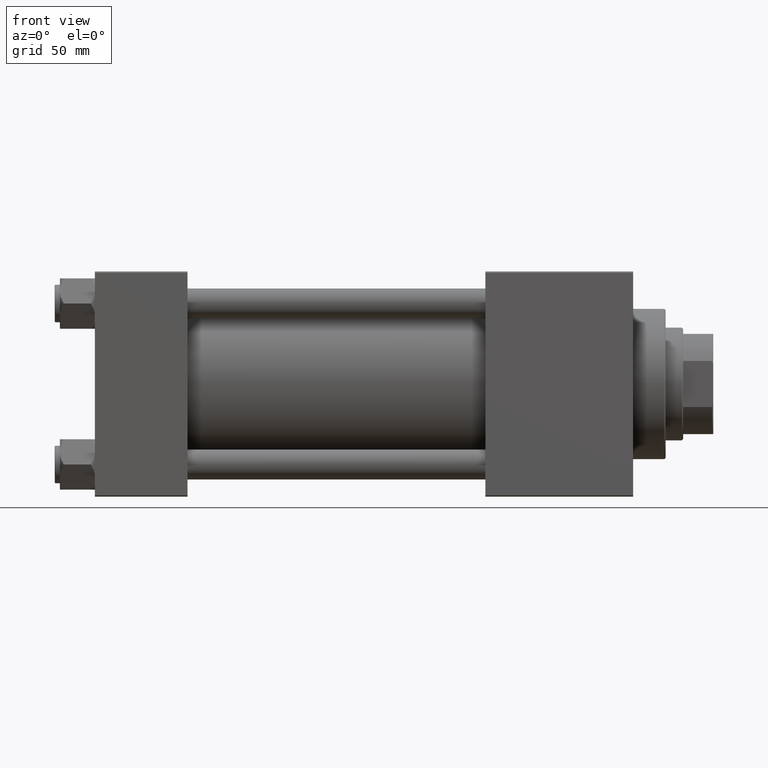
[diagram: clean part render]
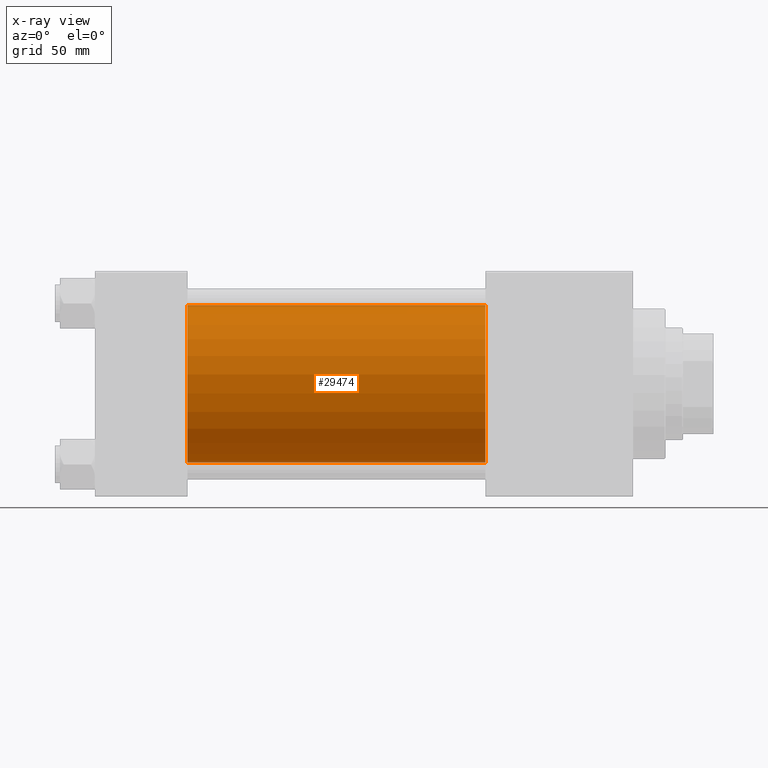
[diagram: x-ray — body ghosted, one internal face saturated and labeled with its STEP entity id]
A machine part, front view, then the same camera in x-ray: the body is ghosted and one INTERNAL B-rep face — a face not visible from any outside direction — is saturated and labeled: STEP entity #29474.
In plain terms, the highlighted cylindrical surface (partial cylindrical patch) has radius 31.5 mm, axis along (-1, -0, -0).
Its self-contained STEP definition (entity closure, byte-faithful):
#1035 = ORIENTED_EDGE ( 'NONE', *, *, #47408, .F. ) ;
#6092 = CIRCLE ( 'NONE', #21452, 31.50000000000000000 ) ;
#6095 = VERTEX_POINT ( 'NONE', #46863 ) ;
#7731 = VECTOR ( 'NONE', #40337, 1000.000000000000000 ) ;
#9120 = VECTOR ( 'NONE', #11511, 1000.000000000000000 ) ;
#9297 = EDGE_CURVE ( 'NONE', #37811, #6095, #6092, .T. ) ;
#9913 = CARTESIAN_POINT ( 'NONE',  ( 156.0000000000000000, 1.255552203348951850E-15, -31.50000000000000000 ) ) ;
#11511 = DIRECTION ( 'NONE',  ( -1.000000000000000000, -0.000000000000000000, -0.000000000000000000 ) ) ;
#13883 = EDGE_CURVE ( 'NONE', #6095, #41286, #47946, .T. ) ;
#15823 = CARTESIAN_POINT ( 'NONE',  ( 156.0000000000000000, -2.602085213965210642E-15, 31.50000000000000000 ) ) ;
#16082 = LINE ( 'NONE', #15823, #9120 ) ;
#17076 = CARTESIAN_POINT ( 'NONE',  ( 37.00000000000000000, 1.255552203348951850E-15, -31.50000000000000000 ) ) ;
#20944 = CARTESIAN_POINT ( 'NONE',  ( 156.0000000000000000, -2.602085213965210642E-15, 31.50000000000000000 ) ) ;
#21452 = AXIS2_PLACEMENT_3D ( 'NONE', #27085, #49175, #42052 ) ;
#24807 = CIRCLE ( 'NONE', #28848, 31.50000000000000000 ) ;
#26332 = FACE_OUTER_BOUND ( 'NONE', #36598, .T. ) ;
#26494 = CARTESIAN_POINT ( 'NONE',  ( 37.00000000000000000, -2.602085213965210642E-15, 0.000000000000000000 ) ) ;
#26733 = DIRECTION ( 'NONE',  ( 0.000000000000000000, 0.000000000000000000, -1.000000000000000000 ) ) ;
#27085 = CARTESIAN_POINT ( 'NONE',  ( 156.0000000000000000, -2.602085213965210642E-15, 0.000000000000000000 ) ) ;
#28848 = AXIS2_PLACEMENT_3D ( 'NONE', #26494, #42957, #26733 ) ;
#29474 = ADVANCED_FACE ( 'NONE', ( #26332 ), #34175, .F. ) ;
#34175 = CYLINDRICAL_SURFACE ( 'NONE', #39768, 31.50000000000000000 ) ;
#36143 = CARTESIAN_POINT ( 'NONE',  ( 37.00000000000000000, -2.602085213965210642E-15, 31.50000000000000000 ) ) ;
#36598 = EDGE_LOOP ( 'NONE', ( #49126, #40269, #1035, #48030 ) ) ;
#37811 = VERTEX_POINT ( 'NONE', #20944 ) ;
#37906 = EDGE_CURVE ( 'NONE', #37811, #40178, #16082, .T. ) ;
#37988 = DIRECTION ( 'NONE',  ( 0.000000000000000000, 0.000000000000000000, 1.000000000000000000 ) ) ;
#39768 = AXIS2_PLACEMENT_3D ( 'NONE', #41292, #42041, #37988 ) ;
#40178 = VERTEX_POINT ( 'NONE', #36143 ) ;
#40269 = ORIENTED_EDGE ( 'NONE', *, *, #13883, .T. ) ;
#40337 = DIRECTION ( 'NONE',  ( -1.000000000000000000, -0.000000000000000000, -0.000000000000000000 ) ) ;
#41286 = VERTEX_POINT ( 'NONE', #17076 ) ;
#41292 = CARTESIAN_POINT ( 'NONE',  ( 156.0000000000000000, -2.602085213965210642E-15, 0.000000000000000000 ) ) ;
#42041 = DIRECTION ( 'NONE',  ( -1.000000000000000000, -0.000000000000000000, -0.000000000000000000 ) ) ;
#42052 = DIRECTION ( 'NONE',  ( 0.000000000000000000, 0.000000000000000000, -1.000000000000000000 ) ) ;
#42957 = DIRECTION ( 'NONE',  ( 1.000000000000000000, 0.000000000000000000, 0.000000000000000000 ) ) ;
#46863 = CARTESIAN_POINT ( 'NONE',  ( 156.0000000000000000, 1.255552203348951850E-15, -31.50000000000000000 ) ) ;
#47408 = EDGE_CURVE ( 'NONE', #40178, #41286, #24807, .T. ) ;
#47946 = LINE ( 'NONE', #9913, #7731 ) ;
#48030 = ORIENTED_EDGE ( 'NONE', *, *, #37906, .F. ) ;
#49126 = ORIENTED_EDGE ( 'NONE', *, *, #9297, .T. ) ;
#49175 = DIRECTION ( 'NONE',  ( 1.000000000000000000, 0.000000000000000000, 0.000000000000000000 ) ) ;